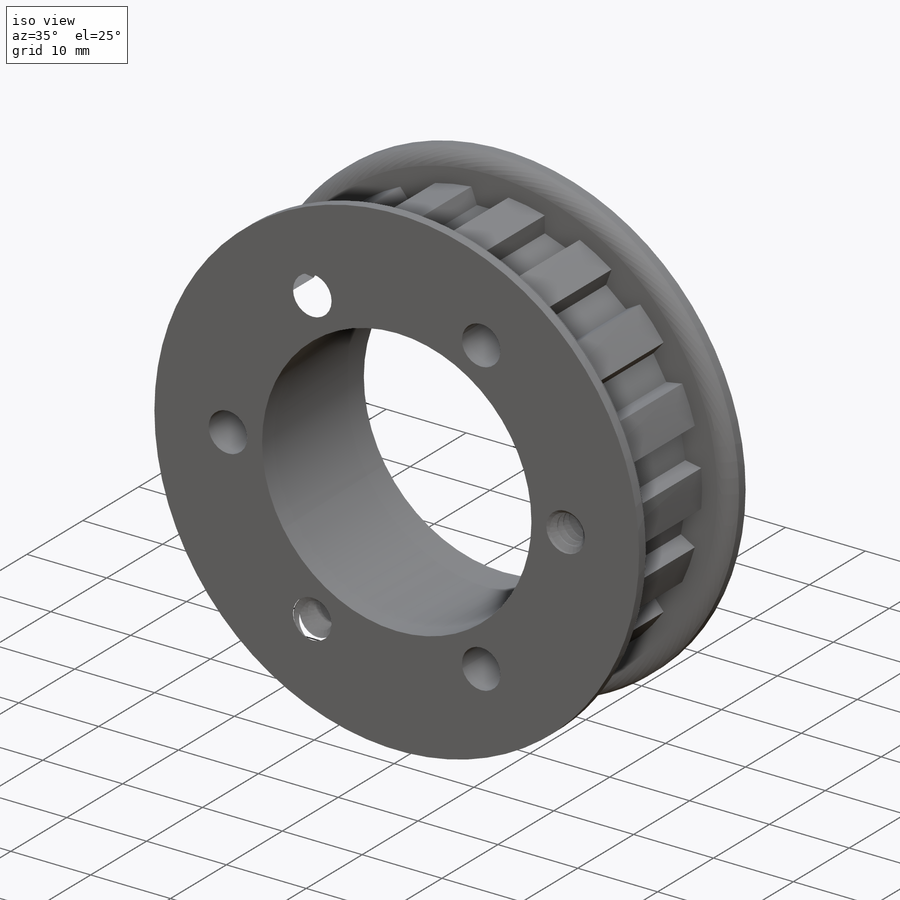
[diagram: iso view]
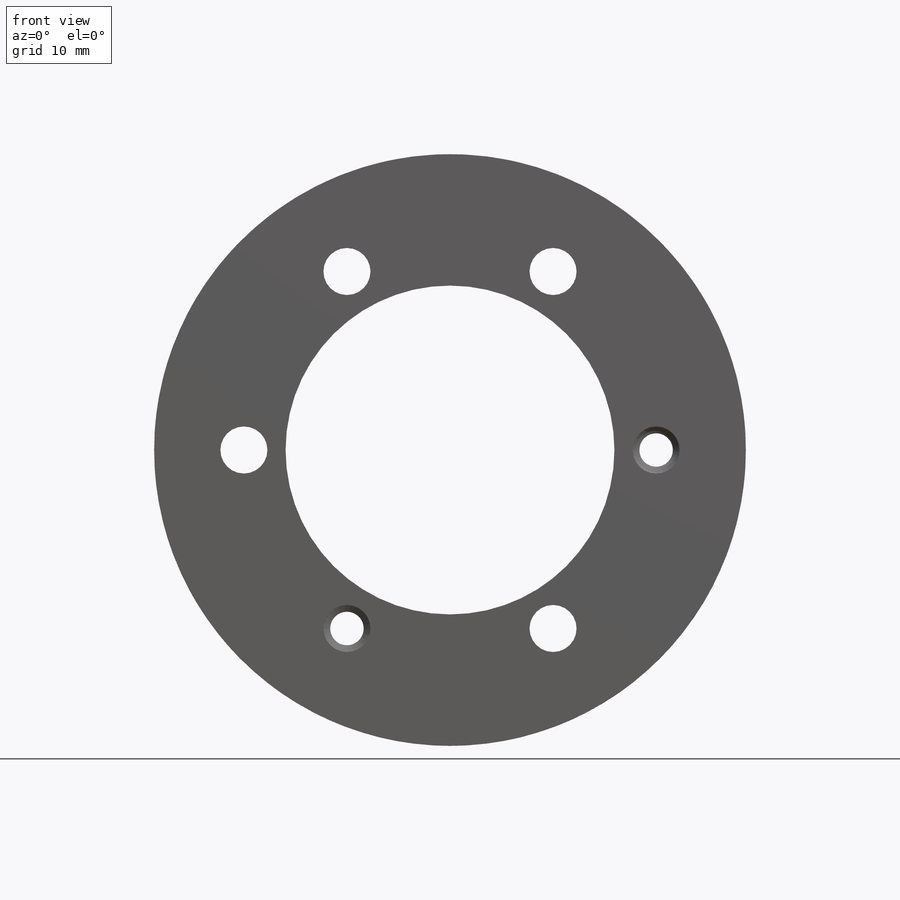
[diagram: front view]
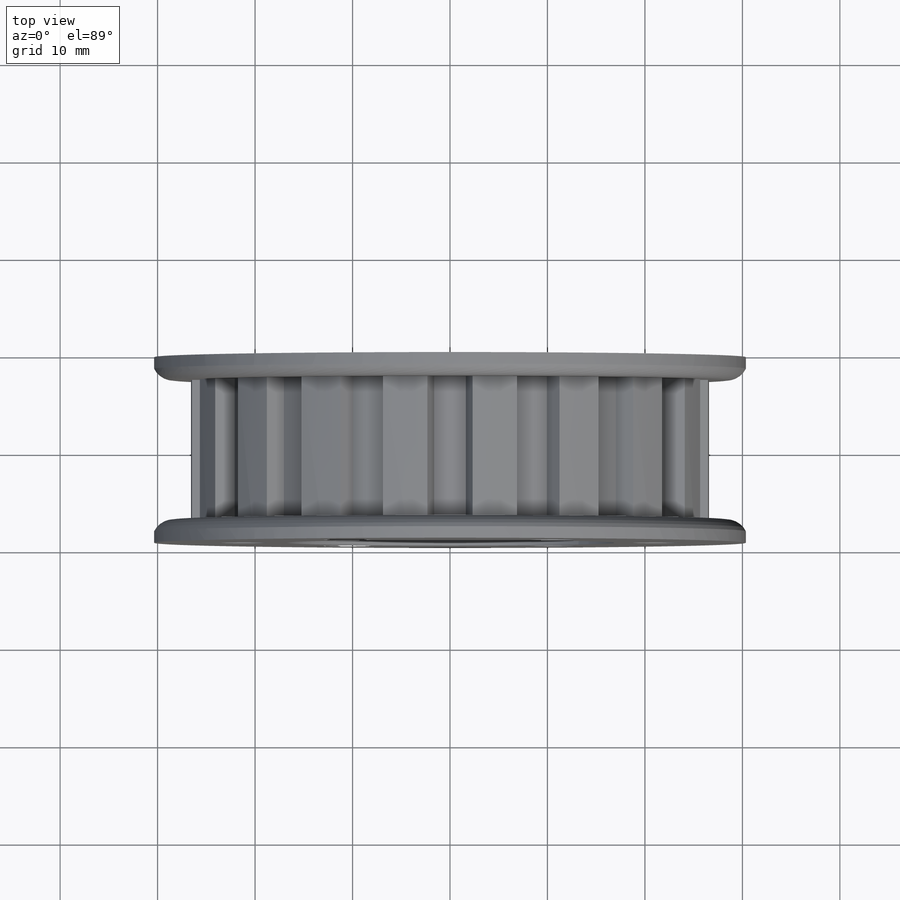
[diagram: top view]
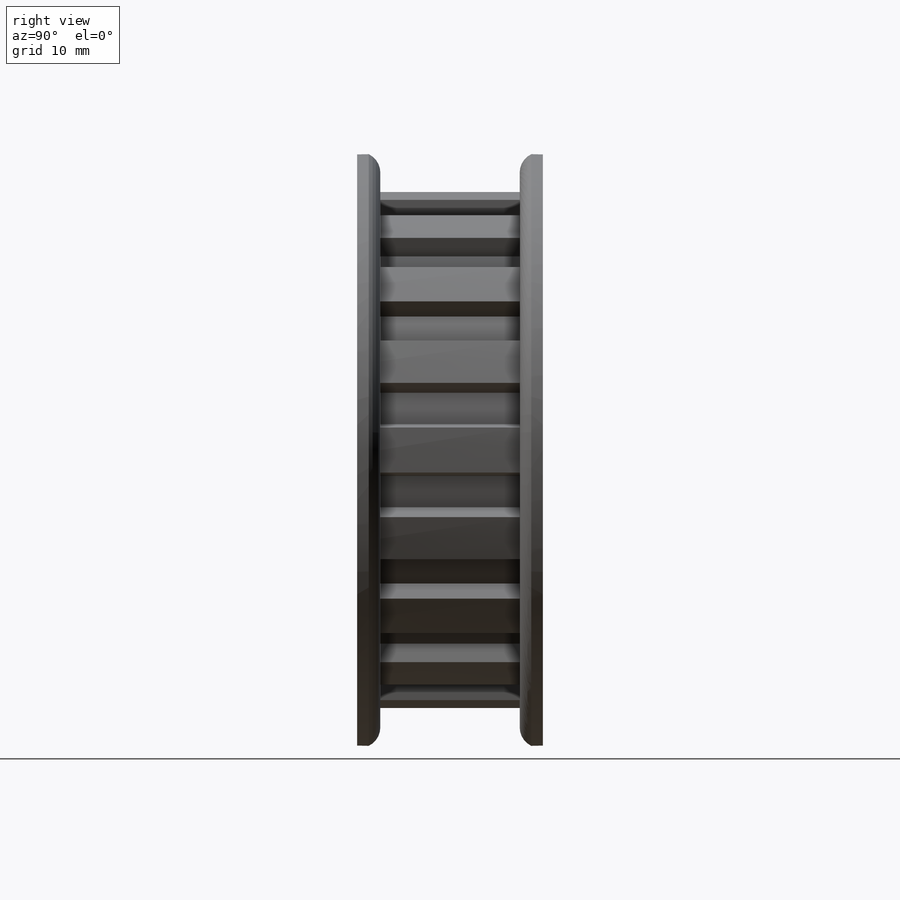
[diagram: right view]
SOLIDWORKS PART (.sldprt)
format: sldprt  version: not decoded by parser v0  size: 1,553,408 bytes
history: native  units: mm
features: sketch x10, pattern_circular x3, extrude x3, cut_extrude x2, material x1, revolve x1, helix x1, sweep x1, move_body x1, boolean_combine x1 (+15 scaffold rows collapsed)
feature tree (39):
  scaffold x15  (default folders/planes/origin — collapsed)
  material  "Material <not specified>"
  sketch  "Sketch1"  dims[c1.PD=54.5846mm c1.OD=60.706mm c1.D1=~3.382676mm c1.b=40.0deg c1.bt=4.6482mm c1.ht=1.905mm c1.hs=3.556mm c2.D1=1.651mm c2.D2=0.8255mm]
  sketch  "Sketch2"  dims[c1.OA=19.05mm c1.Bore=34.925mm c1.Hub Dia=42.8752mm c1.Outside Width=19.05mm c1.Inside Width=14.3002mm c1.ID=17.4625mm c1.D1=19.05mm c2.D1=1.79deg c2.ID=34.925mm c2.D2=~29.692015mm c3.D1=~0.595313mm c3.D2=19.05mm c4.D2=~178.210089deg]
  revolve  "Revolve1"  Angle=360deg
  sketch  "Sketch3"
  cut_extrude  "Cut-Extrude1"  [1 undecoded]
  pattern_circular  "CirPattern1"  Count=18 Angle=360deg Teeth=18
  sketch  "Sketch4"  dims[Bolt Circle=42.291mm T=4.826mm D1=~23.368918mm Angle=30.0deg]
  sketch  "Sketch10"
  cut_extrude  "Cut-Extrude2"  [1 undecoded]
  pattern_circular  "CirPattern3"  Count=3 Angle=360deg
  sketch  "Sketch5"
  extrude  "Boss-Extrude1"  [1 undecoded]
  sketch  "Sketch6"
  helix  "Helix/Spiral1"  Pitch=20.108333mm
  sketch  "Sketch7"  dims[c1.D1=~0.89938mm c2.D1=60.0deg c2.D2=~0.132292mm c2.D3=~0.529167mm]
  sweep  "Cut-Sweep1"
  sketch  "Sketch8"
  extrude  "Boss-Extrude2"  [1 undecoded]
  sketch  "Sketch9"  dims[D1=0.0mm]
  extrude  "Boss-Extrude3"  [1 undecoded]
  move_body  "Body-Move/Copy1"
  pattern_circular  "CirPattern2"  Count=3 Angle=360deg
  boolean_combine  "Combine1"
decode coverage: 10 of 23 modeling features carry decoded parameters
note: ~ marks probable driven/reference dimensions
note: 5 parameter values undecoded
summary: no parameter record found for 5 features
note: suppression state not decoded; provenance and decode notes live in map.json
